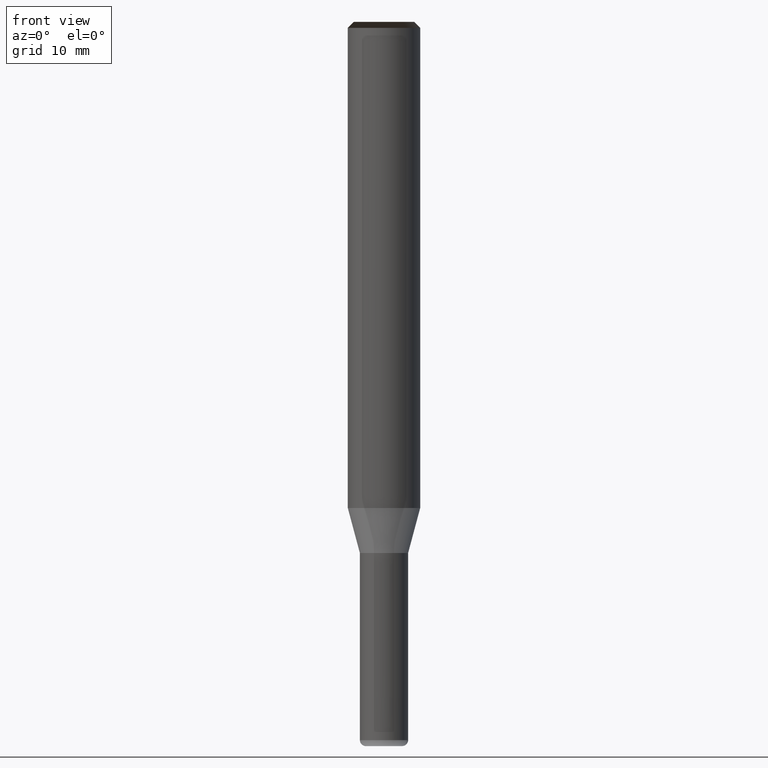
[diagram: clean part render]
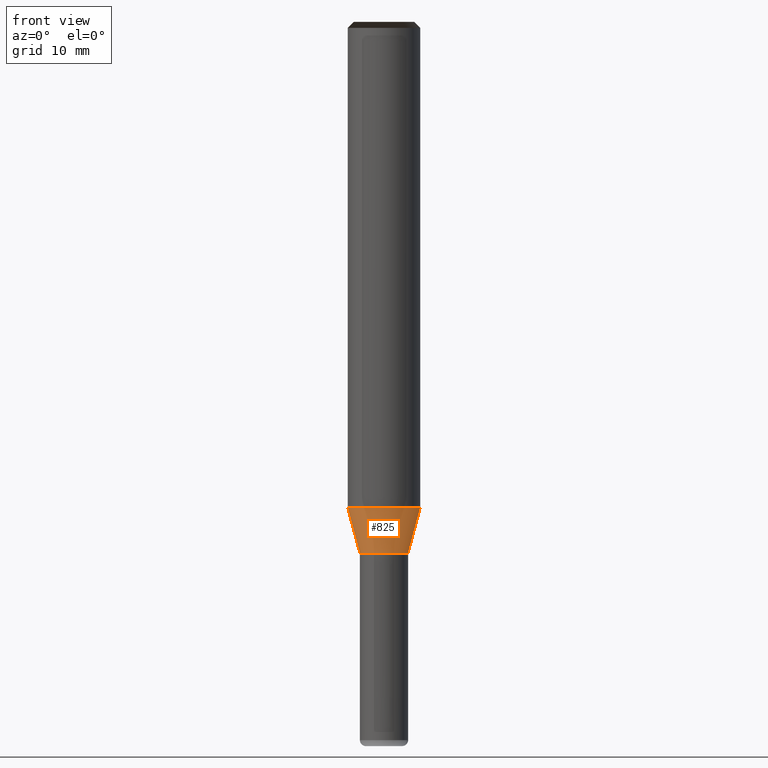
[diagram: same view with one face highlighted and labeled with its STEP entity id]
A machine part, front view. The second image highlights one B-rep face of the part: STEP entity #825.
In plain terms, the highlighted face is a freeform B-spline surface patch.
Its self-contained STEP definition (entity closure, byte-faithful):
#470=CARTESIAN_POINT('',(2.0,0.0,-3.732050807569));
#474=CARTESIAN_POINT('',(-2.0,0.0,-3.732050807569));
#475=CARTESIAN_POINT('',(3.0,0.0,0.0));
#479=CARTESIAN_POINT('',(-3.0,0.0,0.0));
#491=CARTESIAN_POINT('',(-2.0,-2.0,-3.732050807569));
#492=CARTESIAN_POINT('',(0.0,-2.0,-3.732050807569));
#493=CARTESIAN_POINT('',(2.0,-2.0,-3.732050807569));
#494=CARTESIAN_POINT('',(-3.0,-3.0,0.0));
#495=CARTESIAN_POINT('',(0.0,-3.0,0.0));
#496=CARTESIAN_POINT('',(3.0,-3.0,0.0));
#806=(
BOUNDED_SURFACE()
B_SPLINE_SURFACE(1,2,(
(#474,#491,#492,#493,#470),
(#479,#494,#495,#496,#475)
), .UNSPECIFIED.,.F.,.F.,.F.)
B_SPLINE_SURFACE_WITH_KNOTS((2,2),(3,2,3),(
0.0,1.0),(
0.0,0.5,1.0), .UNSPECIFIED.)
GEOMETRIC_REPRESENTATION_ITEM()
RATIONAL_B_SPLINE_SURFACE(((1.0,0.707106781187,1.0,0.707106781187,1.0),
(1.0,0.707106781187,1.0,0.707106781187,1.0)
))
REPRESENTATION_ITEM('')
SURFACE()
);
#807=(
BOUNDED_CURVE()
B_SPLINE_CURVE(1,(#479,#474),.UNSPECIFIED.,.F.,.F.)
B_SPLINE_CURVE_WITH_KNOTS((2,2),
(0.0,1.0),.UNSPECIFIED.)
CURVE()
GEOMETRIC_REPRESENTATION_ITEM()
RATIONAL_B_SPLINE_CURVE((1.0,1.0))
REPRESENTATION_ITEM('')
);
#808=(
BOUNDED_CURVE()
B_SPLINE_CURVE(2,(#474,#491,#492,#493,#470),.UNSPECIFIED.,.F.,.F.)
B_SPLINE_CURVE_WITH_KNOTS((3,2,3),
(0.0,0.5,1.0),.UNSPECIFIED.)
CURVE()
GEOMETRIC_REPRESENTATION_ITEM()
RATIONAL_B_SPLINE_CURVE((1.0,0.707106781187,1.0,0.707106781187,1.0))
REPRESENTATION_ITEM('')
);
#809=(
BOUNDED_CURVE()
B_SPLINE_CURVE(1,(#470,#475),.UNSPECIFIED.,.F.,.F.)
B_SPLINE_CURVE_WITH_KNOTS((2,2),
(0.0,1.0),.UNSPECIFIED.)
CURVE()
GEOMETRIC_REPRESENTATION_ITEM()
RATIONAL_B_SPLINE_CURVE((1.0,1.0))
REPRESENTATION_ITEM('')
);
#810=(
BOUNDED_CURVE()
B_SPLINE_CURVE(2,(#475,#496,#495,#494,#479),.UNSPECIFIED.,.F.,.F.)
B_SPLINE_CURVE_WITH_KNOTS((3,2,3),
(0.0,0.5,1.0),.UNSPECIFIED.)
CURVE()
GEOMETRIC_REPRESENTATION_ITEM()
RATIONAL_B_SPLINE_CURVE((1.0,0.707106781187,1.0,0.707106781187,1.0))
REPRESENTATION_ITEM('')
);
#811=VERTEX_POINT('',#470);
#812=VERTEX_POINT('',#474);
#813=VERTEX_POINT('',#475);
#814=VERTEX_POINT('',#479);
#815=EDGE_CURVE('',#814,#812,#807,.T.);
#816=EDGE_CURVE('',#812,#811,#808,.T.);
#817=EDGE_CURVE('',#811,#813,#809,.T.);
#818=EDGE_CURVE('',#813,#814,#810,.T.);
#819=ORIENTED_EDGE('',*,*,#815,.T.);
#820=ORIENTED_EDGE('',*,*,#816,.T.);
#821=ORIENTED_EDGE('',*,*,#817,.T.);
#822=ORIENTED_EDGE('',*,*,#818,.T.);
#823=EDGE_LOOP('',(#819,#820,#821,#822));
#824=FACE_OUTER_BOUND('',#823,.T.);
#825=ADVANCED_FACE('',(#824),#806,.T.);